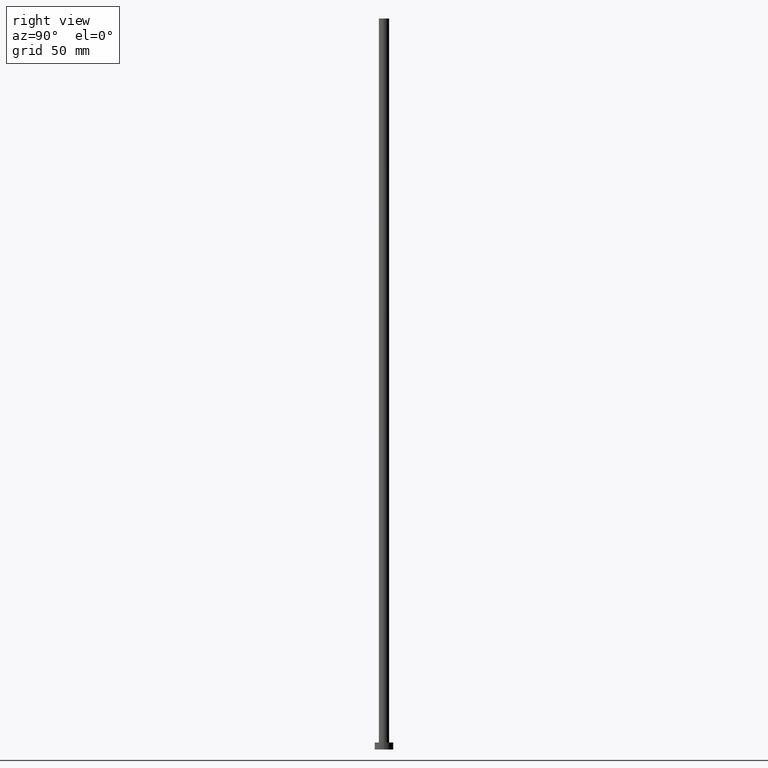
[diagram: clean part render]
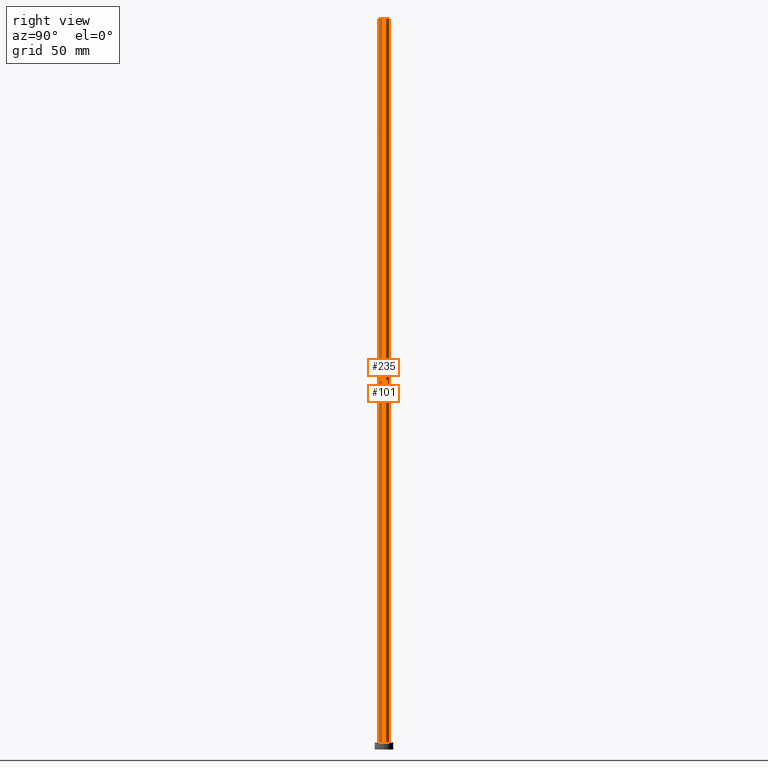
[diagram: same view with one multi-face feature highlighted, each face labeled with its STEP entity id]
A machine part, right view. The highlighted faces form ONE feature: a constant-radius fillet chain: 2 tangent blend faces with common blend radius 2.25 mm. The faces share edges in the B-rep.
Their STEP definitions:
[1] entity #235 (Cylinder):
#4 = EDGE_CURVE ( 'NONE', #54, #226, #15, .T. ) ;
#15 = LINE ( 'NONE', #103, #22 ) ;
#22 = VECTOR ( 'NONE', #198, 1000.000000000000000 ) ;
#32 = CARTESIAN_POINT ( 'NONE',  ( 0.000000000000000000, 0.000000000000000000, 315.0000000000000000 ) ) ;
#36 = CARTESIAN_POINT ( 'NONE',  ( 2.250000000000000000, 2.755455298081544285E-16, 315.0000000000000000 ) ) ;
#38 = DIRECTION ( 'NONE',  ( 1.000000000000000000, 0.000000000000000000, 0.000000000000000000 ) ) ;
#39 = CARTESIAN_POINT ( 'NONE',  ( 2.250000000000000000, 2.755455298081544285E-16, 315.0000000000000000 ) ) ;
#51 = CARTESIAN_POINT ( 'NONE',  ( 2.250000000000000000, 2.755455298081544285E-16, 3.000000000000000000 ) ) ;
#54 = VERTEX_POINT ( 'NONE', #99 ) ;
#55 = AXIS2_PLACEMENT_3D ( 'NONE', #136, #221, #38 ) ;
#56 = CIRCLE ( 'NONE', #55, 2.250000000000000000 ) ;
#58 = VECTOR ( 'NONE', #242, 1000.000000000000000 ) ;
#63 = DIRECTION ( 'NONE',  ( 1.000000000000000000, 0.000000000000000000, 0.000000000000000000 ) ) ;
#70 = EDGE_CURVE ( 'NONE', #226, #133, #188, .T. ) ;
#75 = EDGE_CURVE ( 'NONE', #54, #84, #56, .T. ) ;
#81 = AXIS2_PLACEMENT_3D ( 'NONE', #118, #158, #63 ) ;
#82 = LINE ( 'NONE', #36, #58 ) ;
#84 = VERTEX_POINT ( 'NONE', #39 ) ;
#88 = EDGE_LOOP ( 'NONE', ( #187, #111, #90, #244 ) ) ;
#90 = ORIENTED_EDGE ( 'NONE', *, *, #4, .T. ) ;
#99 = CARTESIAN_POINT ( 'NONE',  ( -2.250000000000000000, 0.000000000000000000, 315.0000000000000000 ) ) ;
#103 = CARTESIAN_POINT ( 'NONE',  ( -2.250000000000000000, 0.000000000000000000, 315.0000000000000000 ) ) ;
#111 = ORIENTED_EDGE ( 'NONE', *, *, #75, .F. ) ;
#118 = CARTESIAN_POINT ( 'NONE',  ( 0.000000000000000000, 0.000000000000000000, 3.000000000000000000 ) ) ;
#132 = AXIS2_PLACEMENT_3D ( 'NONE', #32, #172, #215 ) ;
#133 = VERTEX_POINT ( 'NONE', #51 ) ;
#135 = CARTESIAN_POINT ( 'NONE',  ( -2.250000000000000000, 0.000000000000000000, 3.000000000000000000 ) ) ;
#136 = CARTESIAN_POINT ( 'NONE',  ( 0.000000000000000000, 0.000000000000000000, 315.0000000000000000 ) ) ;
#158 = DIRECTION ( 'NONE',  ( 0.000000000000000000, 0.000000000000000000, 1.000000000000000000 ) ) ;
#172 = DIRECTION ( 'NONE',  ( -0.000000000000000000, -0.000000000000000000, -1.000000000000000000 ) ) ;
#177 = FACE_OUTER_BOUND ( 'NONE', #88, .T. ) ;
#187 = ORIENTED_EDGE ( 'NONE', *, *, #252, .F. ) ;
#188 = CIRCLE ( 'NONE', #81, 2.250000000000000000 ) ;
#198 = DIRECTION ( 'NONE',  ( -0.000000000000000000, -0.000000000000000000, -1.000000000000000000 ) ) ;
#214 = CYLINDRICAL_SURFACE ( 'NONE', #132, 2.250000000000000000 ) ;
#215 = DIRECTION ( 'NONE',  ( -1.000000000000000000, 0.000000000000000000, 0.000000000000000000 ) ) ;
#221 = DIRECTION ( 'NONE',  ( 0.000000000000000000, 0.000000000000000000, 1.000000000000000000 ) ) ;
#226 = VERTEX_POINT ( 'NONE', #135 ) ;
#235 = ADVANCED_FACE ( 'NONE', ( #177 ), #214, .T. ) ;
#242 = DIRECTION ( 'NONE',  ( -0.000000000000000000, -0.000000000000000000, -1.000000000000000000 ) ) ;
#244 = ORIENTED_EDGE ( 'NONE', *, *, #70, .T. ) ;
#252 = EDGE_CURVE ( 'NONE', #84, #133, #82, .T. ) ;
[2] entity #101 (Cylinder):
#4 = EDGE_CURVE ( 'NONE', #54, #226, #15, .T. ) ;
#15 = LINE ( 'NONE', #103, #22 ) ;
#19 = ORIENTED_EDGE ( 'NONE', *, *, #174, .F. ) ;
#20 = CARTESIAN_POINT ( 'NONE',  ( 0.000000000000000000, 0.000000000000000000, 3.000000000000000000 ) ) ;
#21 = EDGE_CURVE ( 'NONE', #133, #226, #62, .T. ) ;
#22 = VECTOR ( 'NONE', #198, 1000.000000000000000 ) ;
#36 = CARTESIAN_POINT ( 'NONE',  ( 2.250000000000000000, 2.755455298081544285E-16, 315.0000000000000000 ) ) ;
#39 = CARTESIAN_POINT ( 'NONE',  ( 2.250000000000000000, 2.755455298081544285E-16, 315.0000000000000000 ) ) ;
#40 = CYLINDRICAL_SURFACE ( 'NONE', #66, 2.250000000000000000 ) ;
#41 = DIRECTION ( 'NONE',  ( 0.000000000000000000, 0.000000000000000000, 1.000000000000000000 ) ) ;
#51 = CARTESIAN_POINT ( 'NONE',  ( 2.250000000000000000, 2.755455298081544285E-16, 3.000000000000000000 ) ) ;
#54 = VERTEX_POINT ( 'NONE', #99 ) ;
#58 = VECTOR ( 'NONE', #242, 1000.000000000000000 ) ;
#61 = DIRECTION ( 'NONE',  ( 1.000000000000000000, 0.000000000000000000, 0.000000000000000000 ) ) ;
#62 = CIRCLE ( 'NONE', #216, 2.250000000000000000 ) ;
#66 = AXIS2_PLACEMENT_3D ( 'NONE', #185, #146, #89 ) ;
#82 = LINE ( 'NONE', #36, #58 ) ;
#84 = VERTEX_POINT ( 'NONE', #39 ) ;
#89 = DIRECTION ( 'NONE',  ( -1.000000000000000000, 0.000000000000000000, 0.000000000000000000 ) ) ;
#99 = CARTESIAN_POINT ( 'NONE',  ( -2.250000000000000000, 0.000000000000000000, 315.0000000000000000 ) ) ;
#101 = ADVANCED_FACE ( 'NONE', ( #204 ), #40, .T. ) ;
#103 = CARTESIAN_POINT ( 'NONE',  ( -2.250000000000000000, 0.000000000000000000, 315.0000000000000000 ) ) ;
#105 = EDGE_LOOP ( 'NONE', ( #19, #193, #247, #140 ) ) ;
#122 = AXIS2_PLACEMENT_3D ( 'NONE', #143, #41, #152 ) ;
#133 = VERTEX_POINT ( 'NONE', #51 ) ;
#135 = CARTESIAN_POINT ( 'NONE',  ( -2.250000000000000000, 0.000000000000000000, 3.000000000000000000 ) ) ;
#138 = CIRCLE ( 'NONE', #122, 2.250000000000000000 ) ;
#140 = ORIENTED_EDGE ( 'NONE', *, *, #4, .F. ) ;
#143 = CARTESIAN_POINT ( 'NONE',  ( 0.000000000000000000, 0.000000000000000000, 315.0000000000000000 ) ) ;
#146 = DIRECTION ( 'NONE',  ( -0.000000000000000000, -0.000000000000000000, -1.000000000000000000 ) ) ;
#152 = DIRECTION ( 'NONE',  ( 1.000000000000000000, 0.000000000000000000, 0.000000000000000000 ) ) ;
#174 = EDGE_CURVE ( 'NONE', #84, #54, #138, .T. ) ;
#185 = CARTESIAN_POINT ( 'NONE',  ( 0.000000000000000000, 0.000000000000000000, 315.0000000000000000 ) ) ;
#193 = ORIENTED_EDGE ( 'NONE', *, *, #252, .T. ) ;
#198 = DIRECTION ( 'NONE',  ( -0.000000000000000000, -0.000000000000000000, -1.000000000000000000 ) ) ;
#204 = FACE_OUTER_BOUND ( 'NONE', #105, .T. ) ;
#216 = AXIS2_PLACEMENT_3D ( 'NONE', #20, #238, #61 ) ;
#226 = VERTEX_POINT ( 'NONE', #135 ) ;
#238 = DIRECTION ( 'NONE',  ( 0.000000000000000000, 0.000000000000000000, 1.000000000000000000 ) ) ;
#242 = DIRECTION ( 'NONE',  ( -0.000000000000000000, -0.000000000000000000, -1.000000000000000000 ) ) ;
#247 = ORIENTED_EDGE ( 'NONE', *, *, #21, .T. ) ;
#252 = EDGE_CURVE ( 'NONE', #84, #133, #82, .T. ) ;